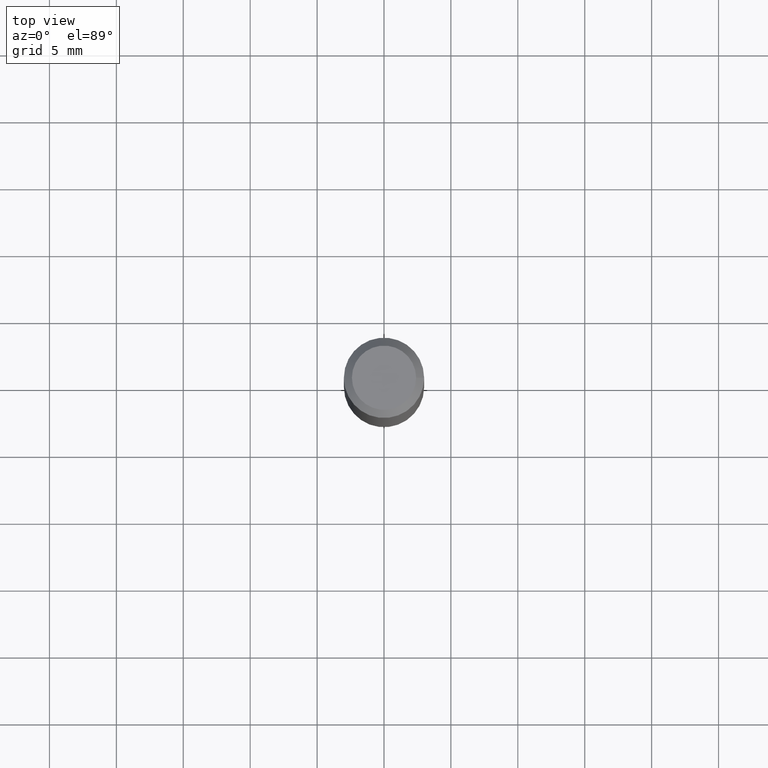
[diagram: clean part render]
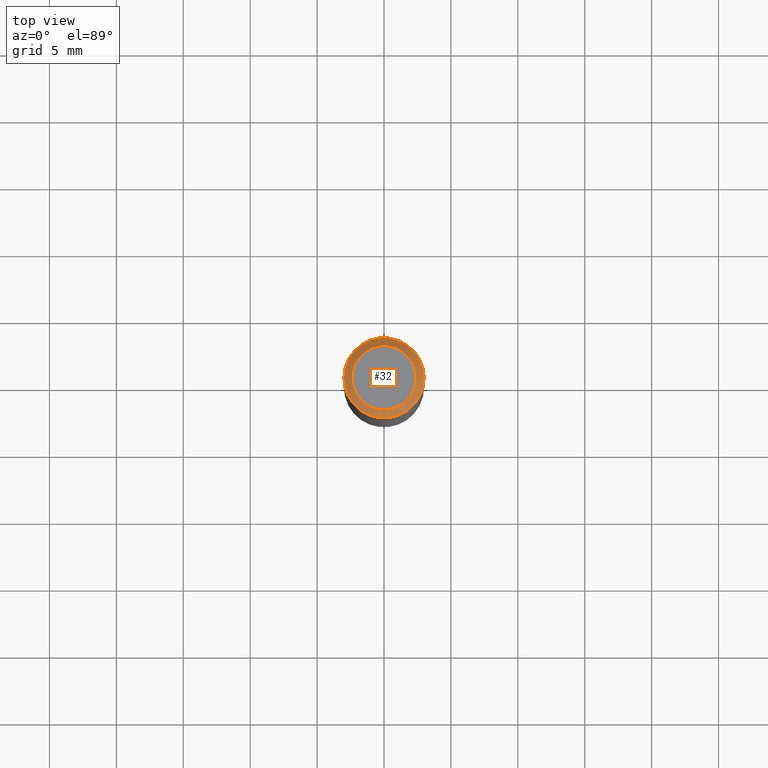
[diagram: same view with one face highlighted and labeled with its STEP entity id]
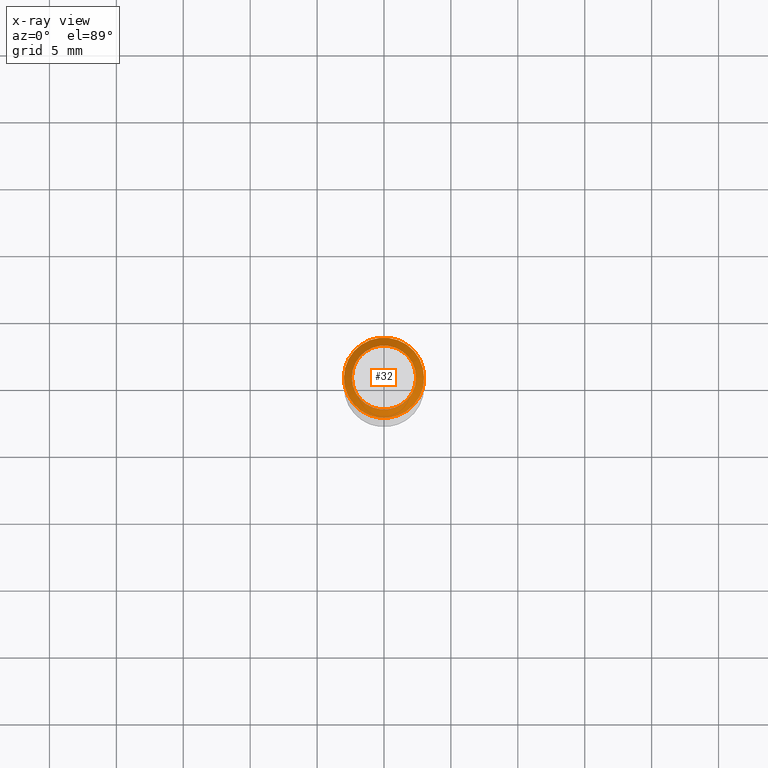
[diagram: x-ray of the same camera — body ghosted, the highlighted face saturated]
A machine part, top view. The second image highlights one B-rep face of the part: STEP entity #32.
The next image is the same camera in x-ray: the body ghosted, the highlighted face saturated — about 0% of this face is hidden behind the body in this view.
In plain terms, the highlighted conical surface has half-angle 45 deg.
Its self-contained STEP definition (entity closure, byte-faithful):
#12 = CARTESIAN_POINT ( 'NONE',  ( 0.0000000000000000000, 0.0000000000000000000, 0.0000000000000000000 ) ) ;
#13 = DIRECTION ( 'NONE',  ( 6.982962677686266711E-15, 0.0000000000000000000, 1.000000000000000000 ) ) ;
#20 = EDGE_CURVE ( 'NONE', #222, #222, #173, .T. ) ;
#32 = ADVANCED_FACE ( 'NONE', ( #48, #183 ), #89, .T. ) ;
#33 = AXIS2_PLACEMENT_3D ( 'NONE', #12, #82, #126 ) ;
#43 = ORIENTED_EDGE ( 'NONE', *, *, #64, .F. ) ;
#48 = FACE_OUTER_BOUND ( 'NONE', #250, .T. ) ;
#64 = EDGE_CURVE ( 'NONE', #115, #115, #213, .T. ) ;
#82 = DIRECTION ( 'NONE',  ( -6.982962677686266711E-15, 0.0000000000000000000, -1.000000000000000000 ) ) ;
#86 = CARTESIAN_POINT ( 'NONE',  ( 2.999999999999995559, 0.0000000000000000000, -0.6000000000000241807 ) ) ;
#89 = CONICAL_SURFACE ( 'NONE', #33, 2.399999999999997691, 0.7853981633974476129 ) ;
#97 = CARTESIAN_POINT ( 'NONE',  ( -4.189777606611783692E-15, 0.0000000000000000000, -0.6000000000000033085 ) ) ;
#110 = EDGE_LOOP ( 'NONE', ( #43 ) ) ;
#115 = VERTEX_POINT ( 'NONE', #166 ) ;
#117 = DIRECTION ( 'NONE',  ( 1.000000000000000000, 0.0000000000000000000, -6.975033976323412122E-15 ) ) ;
#126 = DIRECTION ( 'NONE',  ( -1.000000000000000000, 0.0000000000000000000, 6.982962677686266711E-15 ) ) ;
#137 = AXIS2_PLACEMENT_3D ( 'NONE', #97, #203, #117 ) ;
#165 = DIRECTION ( 'NONE',  ( 1.000000000000000000, 0.0000000000000000000, -6.982962677686266711E-15 ) ) ;
#166 = CARTESIAN_POINT ( 'NONE',  ( 2.399999999999997691, 0.0000000000000000000, -1.675911042644702433E-14 ) ) ;
#169 = ORIENTED_EDGE ( 'NONE', *, *, #20, .T. ) ;
#173 = CIRCLE ( 'NONE', #137, 3.000000000000000000 ) ;
#183 = FACE_BOUND ( 'NONE', #110, .T. ) ;
#184 = CARTESIAN_POINT ( 'NONE',  ( 0.0000000000000000000, 0.0000000000000000000, 0.0000000000000000000 ) ) ;
#203 = DIRECTION ( 'NONE',  ( 6.982962677686266711E-15, 0.0000000000000000000, 1.000000000000000000 ) ) ;
#204 = AXIS2_PLACEMENT_3D ( 'NONE', #184, #13, #165 ) ;
#213 = CIRCLE ( 'NONE', #204, 2.399999999999997691 ) ;
#222 = VERTEX_POINT ( 'NONE', #86 ) ;
#250 = EDGE_LOOP ( 'NONE', ( #169 ) ) ;